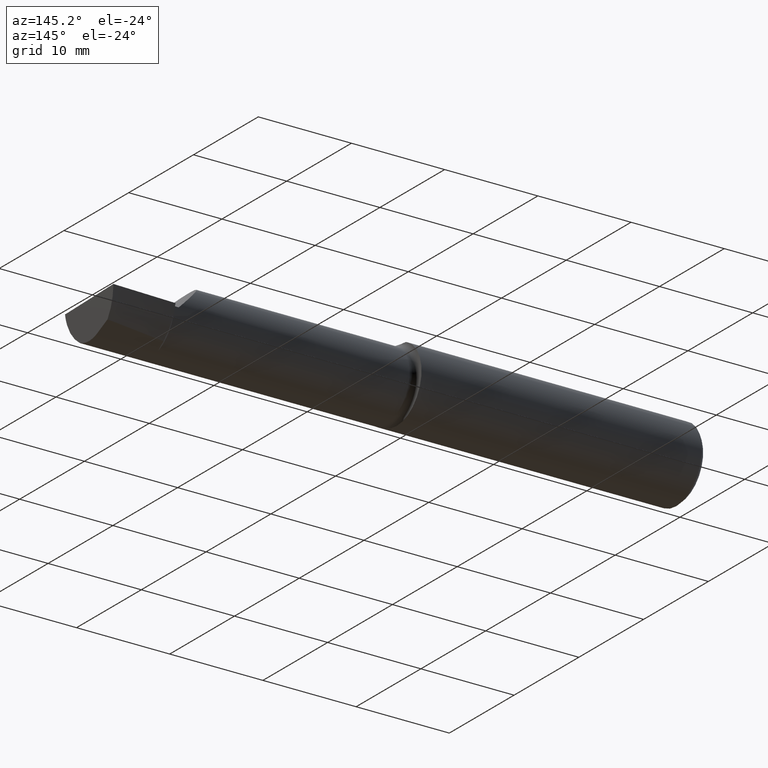
[diagram: clean part render]
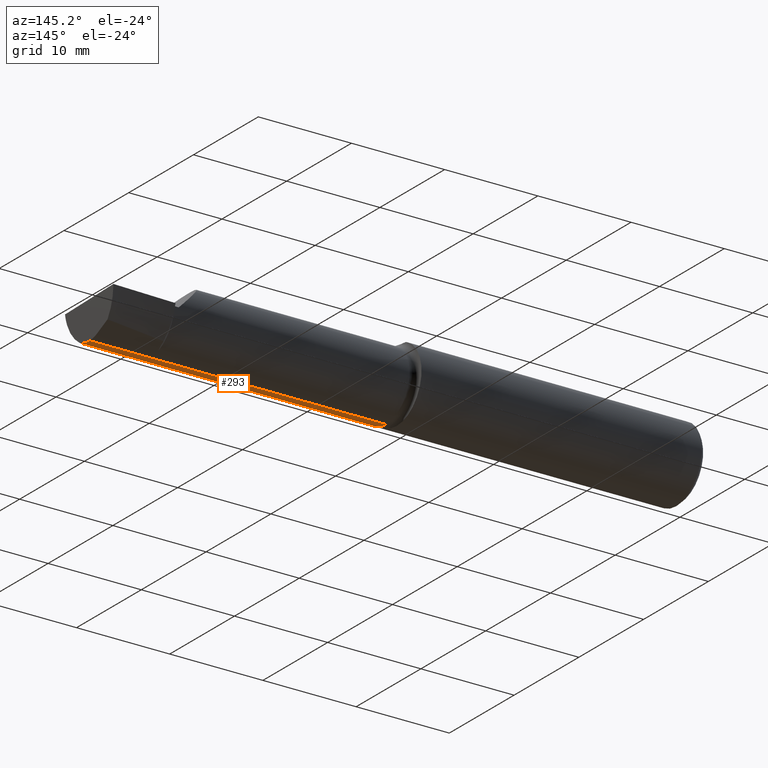
[diagram: same view with one face highlighted and labeled with its STEP entity id]
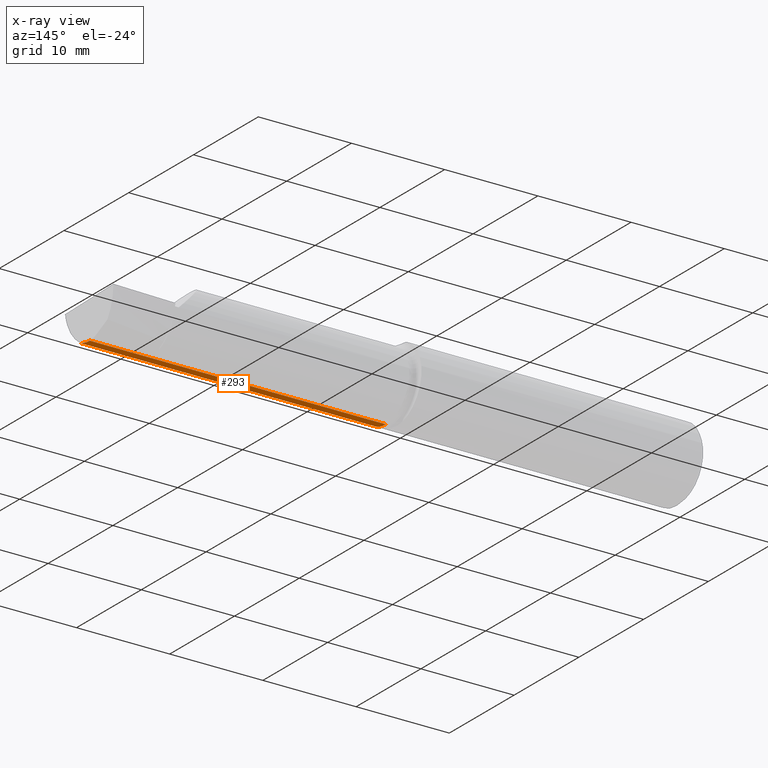
[diagram: x-ray of the same camera — body ghosted, the highlighted face saturated]
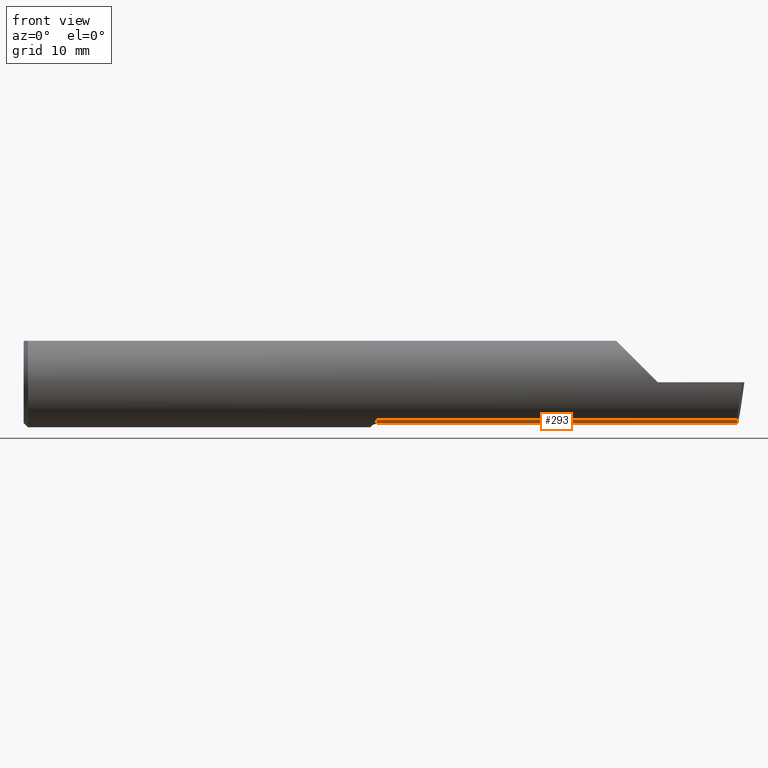
[diagram: same view with one face highlighted and labeled with its STEP entity id]
A machine part, auxiliary view. The second image highlights one B-rep face of the part: STEP entity #293.
The next image is the same camera in x-ray: the body ghosted, the highlighted face saturated — about 0% of this face is hidden behind the body in this view.
A second angle (front view) of the same face is appended — the face is thin or edge-on in the first view.
In plain terms, the highlighted cylindrical surface (partial cylindrical patch) has radius 3.6551 mm, axis along (-1, -0, -0).
Its self-contained STEP definition (entity closure, byte-faithful):
#19 = VERTEX_POINT ( 'NONE', #198 ) ;
#21 = LINE ( 'NONE', #418, #461 ) ;
#43 = ORIENTED_EDGE ( 'NONE', *, *, #627, .F. ) ;
#61 = CYLINDRICAL_SURFACE ( 'NONE', #528, 0.1439000000000000556 ) ;
#68 = CARTESIAN_POINT ( 'NONE',  ( 2.476130359589496788, -0.02499999999999999098, -0.1439000000000000556 ) ) ;
#99 =( BOUNDED_CURVE ( )  B_SPLINE_CURVE ( 3, ( #621, #131, #139, #350 ),
 .UNSPECIFIED., .F., .F. ) 
 B_SPLINE_CURVE_WITH_KNOTS ( ( 4, 4 ),
 ( 6.122674497807367722, 6.558126988897922338 ),
 .UNSPECIFIED. ) 
 CURVE ( )  GEOMETRIC_REPRESENTATION_ITEM ( )  RATIONAL_B_SPLINE_CURVE ( ( 1.000000000000000000, 0.9842607512044745377, 0.9842607512044745377, 1.000000000000000000 ) ) 
 REPRESENTATION_ITEM ( '' )  );
#115 = ORIENTED_EDGE ( 'NONE', *, *, #166, .T. ) ;
#117 = LINE ( 'NONE', #286, #460 ) ;
#123 = DIRECTION ( 'NONE',  ( 0.000000000000000000, 0.000000000000000000, 1.000000000000000000 ) ) ;
#131 = CARTESIAN_POINT ( 'NONE',  ( 2.475247014433751946, -0.06661082633900415606, -0.1393521354400290846 ) ) ;
#139 = CARTESIAN_POINT ( 'NONE',  ( 2.475400702430881950, -0.04605394310600625929, -0.1439000000000000834 ) ) ;
#166 = EDGE_CURVE ( 'NONE', #19, #446, #117, .T. ) ;
#169 = CARTESIAN_POINT ( 'NONE',  ( 1.225000000000000089, -0.02500000000000000486, 0.000000000000000000 ) ) ;
#198 = CARTESIAN_POINT ( 'NONE',  ( 2.475676552398977215, -0.08569999999999944329, -0.1304711462354803120 ) ) ;
#241 = AXIS2_PLACEMENT_3D ( 'NONE', #169, #561, #123 ) ;
#280 = EDGE_CURVE ( 'NONE', #603, #446, #711, .T. ) ;
#286 = CARTESIAN_POINT ( 'NONE',  ( 1.722499999999999698, -0.08569999999999944329, -0.1304711462354803120 ) ) ;
#293 = ADVANCED_FACE ( 'NONE', ( #523 ), #61, .T. ) ;
#298 = DIRECTION ( 'NONE',  ( -1.000000000000000000, -0.000000000000000000, -0.000000000000000000 ) ) ;
#350 = CARTESIAN_POINT ( 'NONE',  ( 2.476130359589496788, -0.02499999999999999098, -0.1439000000000000556 ) ) ;
#356 = DIRECTION ( 'NONE',  ( 0.000000000000000000, 0.000000000000000000, 1.000000000000000000 ) ) ;
#414 = EDGE_LOOP ( 'NONE', ( #570, #43, #115, #443 ) ) ;
#418 = CARTESIAN_POINT ( 'NONE',  ( 0.000000000000000000, -0.02499999999999999098, -0.1439000000000000556 ) ) ;
#443 = ORIENTED_EDGE ( 'NONE', *, *, #280, .F. ) ;
#446 = VERTEX_POINT ( 'NONE', #474 ) ;
#460 = VECTOR ( 'NONE', #492, 39.37007874015748143 ) ;
#461 = VECTOR ( 'NONE', #574, 39.37007874015748143 ) ;
#474 = CARTESIAN_POINT ( 'NONE',  ( 1.225000000000000089, -0.08569999999999974860, -0.1304711462354800899 ) ) ;
#492 = DIRECTION ( 'NONE',  ( -1.000000000000000000, -0.000000000000000000, -0.000000000000000000 ) ) ;
#523 = FACE_OUTER_BOUND ( 'NONE', #414, .T. ) ;
#528 = AXIS2_PLACEMENT_3D ( 'NONE', #677, #298, #356 ) ;
#561 = DIRECTION ( 'NONE',  ( -1.000000000000000000, -0.000000000000000000, -0.000000000000000000 ) ) ;
#570 = ORIENTED_EDGE ( 'NONE', *, *, #610, .F. ) ;
#574 = DIRECTION ( 'NONE',  ( -1.000000000000000000, -0.000000000000000000, -0.000000000000000000 ) ) ;
#603 = VERTEX_POINT ( 'NONE', #689 ) ;
#610 = EDGE_CURVE ( 'NONE', #613, #603, #21, .T. ) ;
#613 = VERTEX_POINT ( 'NONE', #68 ) ;
#621 = CARTESIAN_POINT ( 'NONE',  ( 2.475676552398977215, -0.08569999999999944329, -0.1304711462354803120 ) ) ;
#627 = EDGE_CURVE ( 'NONE', #19, #613, #99, .T. ) ;
#677 = CARTESIAN_POINT ( 'NONE',  ( 0.000000000000000000, -0.02500000000000000486, 0.000000000000000000 ) ) ;
#689 = CARTESIAN_POINT ( 'NONE',  ( 1.225000000000000089, -0.02499999999999999098, -0.1439000000000000001 ) ) ;
#711 = CIRCLE ( 'NONE', #241, 0.1439000000000000001 ) ;